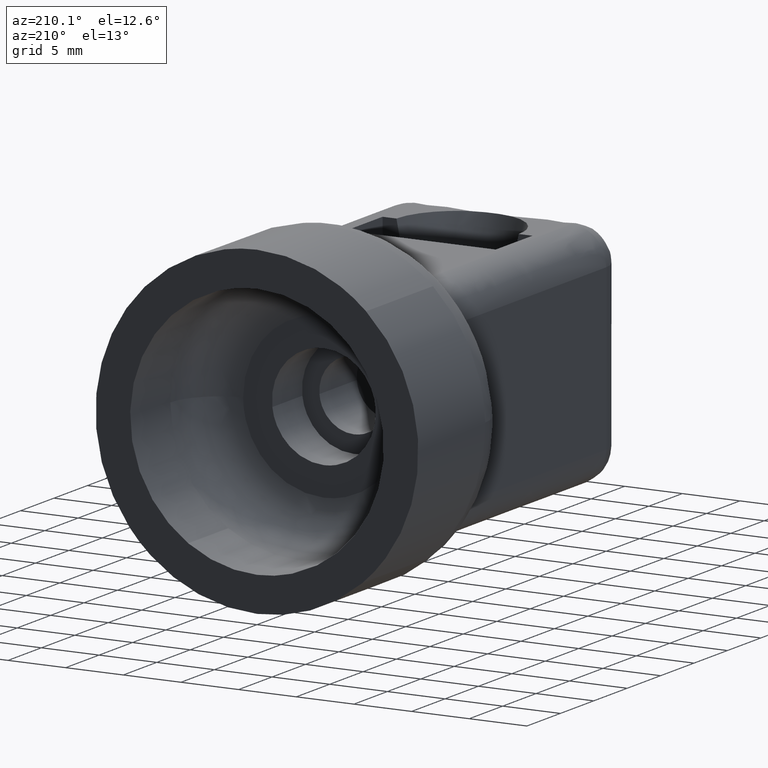
[diagram: clean part render]
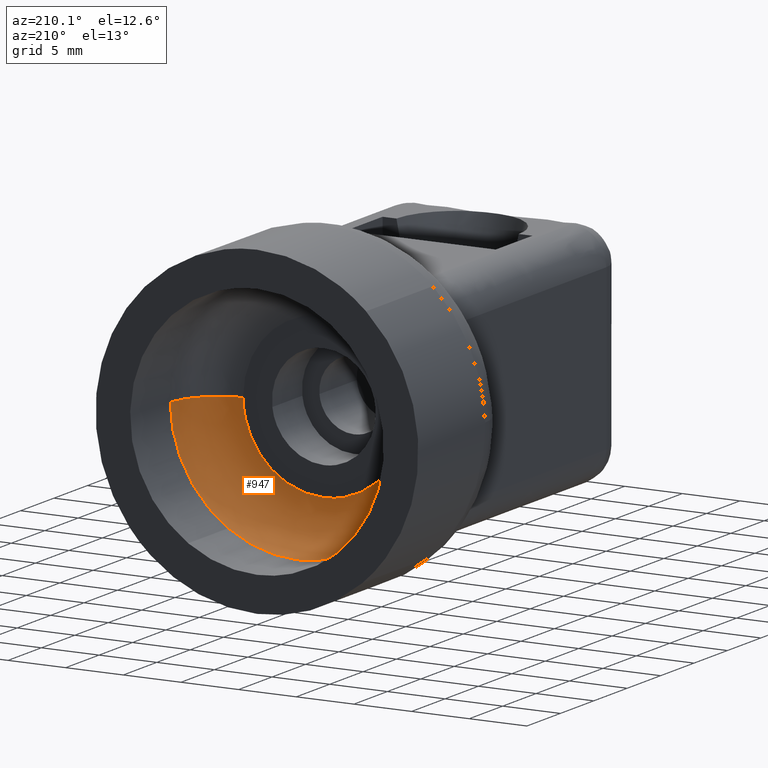
[diagram: same view with one face highlighted and labeled with its STEP entity id]
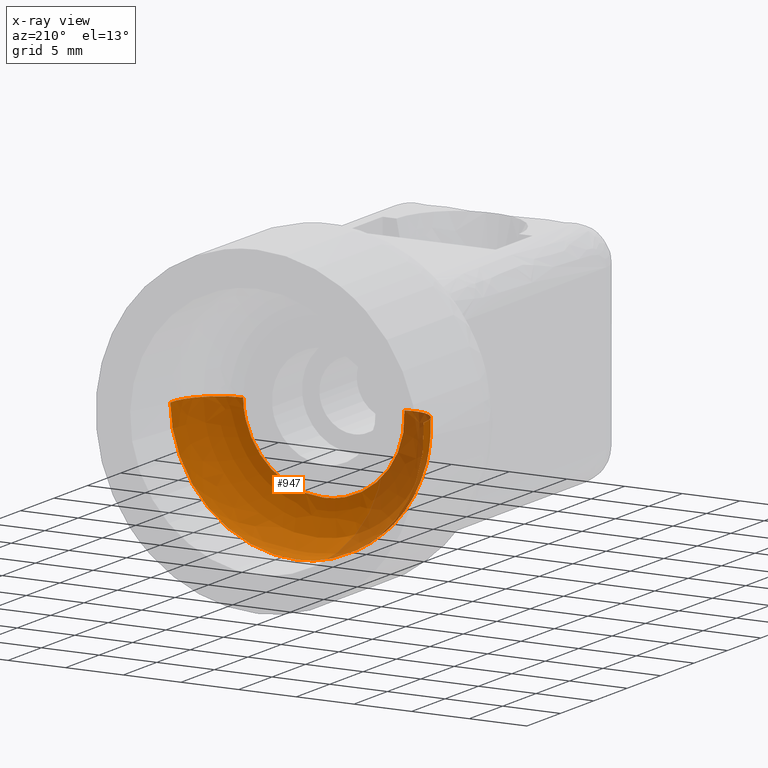
[diagram: x-ray of the same camera — body ghosted, the highlighted face saturated]
A machine part, auxiliary view. The second image highlights one B-rep face of the part: STEP entity #947.
The next image is the same camera in x-ray: the body ghosted, the highlighted face saturated — about 21% of this face is hidden behind the body in this view.
In plain terms, the highlighted face is a freeform B-spline surface patch.
Its self-contained STEP definition (entity closure, byte-faithful):
#252=CARTESIAN_POINT('',(5.970014929997566,24.000000757002550,-9.238989216120395));
#253=VERTEX_POINT('',#252);
#254=CARTESIAN_POINT('',(10.999131580517060,24.000002133350311,-0.138218936441024));
#255=VERTEX_POINT('',#254);
#256=CARTESIAN_POINT('',(5.970014929997566,24.000000757002553,-9.238989216120395));
#257=CARTESIAN_POINT('',(10.925002997323150,24.000001554044765,-6.037193862977916));
#258=CARTESIAN_POINT('',(10.999131580517066,24.000002133350311,-0.138218936441024));
#266=(BOUNDED_CURVE()B_SPLINE_CURVE(2,(#256,#257,#258),.UNSPECIFIED.,.F.,.U.)B_SPLINE_CURVE_WITH_KNOTS((3,3),(0.092934700881781,0.247784415876956),.UNSPECIFIED.)CURVE()GEOMETRIC_REPRESENTATION_ITEM()RATIONAL_B_SPLINE_CURVE((0.863190124921761,0.816652415769296,0.994854571734541))REPRESENTATION_ITEM(''));
#267=EDGE_CURVE('',#253,#255,#266,.T.);
#286=CARTESIAN_POINT('',(-10.973222571326680,24.000002059557129,0.767063491569085));
#287=VERTEX_POINT('',#286);
#301=CARTESIAN_POINT('',(-8.487871131314609,24.000001115755062,-6.996859556843279));
#302=VERTEX_POINT('',#301);
#303=CARTESIAN_POINT('',(-10.973222571326680,24.000002059557133,0.767063491569085));
#304=CARTESIAN_POINT('',(-10.999999999998723,24.000002026033776,0.383999132574618));
#305=CARTESIAN_POINT('',(-10.999999999998749,24.000001990085220,-8.946931E-014));
#306=CARTESIAN_POINT('',(-10.999999999998979,24.000001620356997,-3.949402918700513));
#307=CARTESIAN_POINT('',(-8.487871131314611,24.000001115755065,-6.996859556843279));
#315=(BOUNDED_CURVE()B_SPLINE_CURVE(2,(#303,#304,#305,#306,#307),.UNSPECIFIED.,.F.,.U.)B_SPLINE_CURVE_WITH_KNOTS((3,2,3),(0.737833722202962,0.750000000000000,0.860504610425416),.UNSPECIFIED.)CURVE()GEOMETRIC_REPRESENTATION_ITEM()RATIONAL_B_SPLINE_CURVE((0.972879951827607,0.985746318940187,1.0,0.870535795835093,0.855522723232423))REPRESENTATION_ITEM(''));
#316=EDGE_CURVE('',#287,#302,#315,.T.);
#381=CARTESIAN_POINT('',(0.0,24.0,-11.0));
#382=VERTEX_POINT('',#381);
#383=CARTESIAN_POINT('',(0.0,24.0,-11.0));
#384=CARTESIAN_POINT('',(3.244735373329327,24.000000318622281,-10.999999999999993));
#385=CARTESIAN_POINT('',(5.970014929997566,24.000000757002553,-9.238989216120395));
#393=(BOUNDED_CURVE()B_SPLINE_CURVE(2,(#383,#384,#385),.UNSPECIFIED.,.F.,.U.)B_SPLINE_CURVE_WITH_KNOTS((3,3),(0.0,0.092934700881781),.UNSPECIFIED.)CURVE()GEOMETRIC_REPRESENTATION_ITEM()RATIONAL_B_SPLINE_CURVE((1.0,0.891120225277079,0.863190124921761))REPRESENTATION_ITEM(''));
#394=EDGE_CURVE('',#382,#253,#393,.T.);
#426=CARTESIAN_POINT('',(-8.487871131314611,24.000001115755065,-6.996859556843279));
#427=CARTESIAN_POINT('',(-5.187937492625488,24.000000452910076,-11.000000000000020));
#428=CARTESIAN_POINT('',(0.0,24.0,-11.0));
#436=(BOUNDED_CURVE()B_SPLINE_CURVE(2,(#426,#427,#428),.UNSPECIFIED.,.F.,.U.)B_SPLINE_CURVE_WITH_KNOTS((3,3),(0.860504610425416,1.0),.UNSPECIFIED.)CURVE()GEOMETRIC_REPRESENTATION_ITEM()RATIONAL_B_SPLINE_CURVE((0.855522723232423,0.836570985351454,1.0))REPRESENTATION_ITEM(''));
#437=EDGE_CURVE('',#302,#382,#436,.T.);
#852=CARTESIAN_POINT('',(-10.963563355539913,24.278150326493417,0.766389958209767));
#853=CARTESIAN_POINT('',(-10.985497085714851,24.278150326493417,0.452617788023693));
#854=CARTESIAN_POINT('',(-10.989449580967070,24.278150326493414,0.138104765902275));
#855=CARTESIAN_POINT('',(-11.127554346869349,24.278150326493414,-10.851344815064797));
#856=CARTESIAN_POINT('',(-0.138104765902276,24.278150326493414,-10.989449580967070));
#857=CARTESIAN_POINT('',(10.851344815064797,24.278150326493414,-11.127554346869349));
#858=CARTESIAN_POINT('',(10.989449580967070,24.278150326493414,-0.138104765902277));
#859=CARTESIAN_POINT('',(-11.282618223947695,19.689851046558861,0.788692966760551));
#860=CARTESIAN_POINT('',(-11.305190256029389,19.689851046558864,0.465789592127324));
#861=CARTESIAN_POINT('',(-11.309257774364134,19.689851046558857,0.142123805742016));
#862=CARTESIAN_POINT('',(-11.451381580106144,19.689851046558857,-11.167133968622114));
#863=CARTESIAN_POINT('',(-0.142123805742017,19.689851046558857,-11.309257774364134));
#864=CARTESIAN_POINT('',(11.167133968622114,19.689851046558857,-11.451381580106149));
#865=CARTESIAN_POINT('',(11.309257774364134,19.689851046558857,-0.142123805742018));
#866=CARTESIAN_POINT('',(-6.705488208383197,20.009682552140628,0.468736181946003));
#867=CARTESIAN_POINT('',(-6.718903223582575,20.009682552140632,0.276828175482176));
#868=CARTESIAN_POINT('',(-6.721320631996973,20.009682552140635,0.084467052293841));
#869=CARTESIAN_POINT('',(-6.805787684290815,20.009682552140632,-6.636853579703132));
#870=CARTESIAN_POINT('',(-0.084467052293841,20.009682552140635,-6.721320631996973));
#871=CARTESIAN_POINT('',(6.636853579703132,20.009682552140632,-6.805787684290815));
#872=CARTESIAN_POINT('',(6.721320631996973,20.009682552140635,-0.084467052293842));
#880=(BOUNDED_SURFACE()B_SPLINE_SURFACE(2,2,((#852,#859,#866),(#853,#860,#867),(#854,#861,#868),(#855,#862,#869),(#856,#863,#870),(#857,#864,#871),(#858,#865,#872)),.UNSPECIFIED.,.F.,.F.,.U.)B_SPLINE_SURFACE_WITH_KNOTS((3,2,2,3),(3,3),(0.0,0.728373464242208,18.937727436090601,37.147081407938998),(0.0,7.289498179379118),.UNSPECIFIED.)GEOMETRIC_REPRESENTATION_ITEM()RATIONAL_B_SPLINE_SURFACE(((0.889999491983505,0.584039659995552,0.889999320495530),(0.899813065124924,0.590479569200536,0.899812891746038),(0.910479991567964,0.597479469929812,0.910479816133740),(0.643806576172378,0.422481784807114,0.643806452121649),(0.910479991567964,0.597479469929812,0.910479816133740),(0.643806576172378,0.422481784807114,0.643806452121649),(0.910479991567964,0.597479469929812,0.910479816133740)))REPRESENTATION_ITEM('')SURFACE());
#881=CARTESIAN_POINT('',(-6.982959722509144,20.0,0.488132767374801));
#882=VERTEX_POINT('',#881);
#883=CARTESIAN_POINT('',(0.0,20.0,-7.0));
#884=VERTEX_POINT('',#883);
#885=CARTESIAN_POINT('',(-6.982959722509144,19.999999999999996,0.488132767374801));
#886=CARTESIAN_POINT('',(-7.0,19.999999999999993,0.244363817069147));
#887=CARTESIAN_POINT('',(-7.0,20.0,0.0));
#888=CARTESIAN_POINT('',(-6.999999999999999,20.0,-6.999999999999999));
#889=CARTESIAN_POINT('',(0.0,20.0,-7.0));
#897=(BOUNDED_CURVE()B_SPLINE_CURVE(2,(#885,#886,#887,#888,#889),.UNSPECIFIED.,.F.,.U.)B_SPLINE_CURVE_WITH_KNOTS((3,2,3),(0.737833686243308,0.750000000000000,1.0),.UNSPECIFIED.)CURVE()GEOMETRIC_REPRESENTATION_ITEM()RATIONAL_B_SPLINE_CURVE((0.972879875769829,0.985746276810833,1.0,0.707106781186547,1.0))REPRESENTATION_ITEM(''));
#898=EDGE_CURVE('',#882,#884,#897,.T.);
#899=ORIENTED_EDGE('',*,*,#898,.T.);
#900=CARTESIAN_POINT('',(6.999447310105774,20.0,-0.087962279396084));
#901=VERTEX_POINT('',#900);
#902=CARTESIAN_POINT('',(0.0,20.0,-7.0));
#903=CARTESIAN_POINT('',(6.912583508948136,20.0,-6.999999999999999));
#904=CARTESIAN_POINT('',(6.999447310105774,20.0,-0.087962279396084));
#912=(BOUNDED_CURVE()B_SPLINE_CURVE(2,(#902,#903,#904),.UNSPECIFIED.,.F.,.U.)B_SPLINE_CURVE_WITH_KNOTS((3,3),(0.0,0.247784295911474),.UNSPECIFIED.)CURVE()GEOMETRIC_REPRESENTATION_ITEM()RATIONAL_B_SPLINE_CURVE((1.0,0.709702639996253,0.994854295620412))REPRESENTATION_ITEM(''));
#913=EDGE_CURVE('',#884,#901,#912,.T.);
#914=ORIENTED_EDGE('',*,*,#913,.T.);
#915=CARTESIAN_POINT('',(10.999131580517064,24.000002133350311,-0.138218936441024));
#916=CARTESIAN_POINT('',(10.999133666220139,20.000000001363368,-0.138222714484469));
#917=CARTESIAN_POINT('',(6.999447310105774,20.0,-0.087962279396084));
#925=(BOUNDED_CURVE()B_SPLINE_CURVE(2,(#915,#916,#917),.UNSPECIFIED.,.F.,.U.)B_SPLINE_CURVE_WITH_KNOTS((3,3),(-1.725135190217025,-0.274865357067716),.UNSPECIFIED.)CURVE()GEOMETRIC_REPRESENTATION_ITEM()RATIONAL_B_SPLINE_CURVE((0.883342344797266,0.624617126617869,0.883342149528348))REPRESENTATION_ITEM(''));
#926=EDGE_CURVE('',#255,#901,#925,.T.);
#927=ORIENTED_EDGE('',*,*,#926,.F.);
#928=ORIENTED_EDGE('',*,*,#267,.F.);
#929=ORIENTED_EDGE('',*,*,#394,.F.);
#930=ORIENTED_EDGE('',*,*,#437,.F.);
#931=ORIENTED_EDGE('',*,*,#316,.F.);
#932=CARTESIAN_POINT('',(-10.973222571326680,24.000002059557140,0.767063491569085));
#933=CARTESIAN_POINT('',(-10.973224543102797,20.000000012110014,0.767064775820264));
#934=CARTESIAN_POINT('',(-6.982959722509145,20.000000000000004,0.488132767374801));
#942=(BOUNDED_CURVE()B_SPLINE_CURVE(2,(#932,#933,#934),.UNSPECIFIED.,.F.,.U.)B_SPLINE_CURVE_WITH_KNOTS((3,3),(-1.725135171298383,-0.274865359822873),.UNSPECIFIED.)CURVE()GEOMETRIC_REPRESENTATION_ITEM()RATIONAL_B_SPLINE_CURVE((0.863472259529040,0.610566868324536,0.863472074289881))REPRESENTATION_ITEM(''));
#943=EDGE_CURVE('',#287,#882,#942,.T.);
#944=ORIENTED_EDGE('',*,*,#943,.T.);
#945=EDGE_LOOP('',(#899,#914,#927,#928,#929,#930,#931,#944));
#946=FACE_OUTER_BOUND('',#945,.T.);
#947=ADVANCED_FACE('',(#946),#880,.F.);